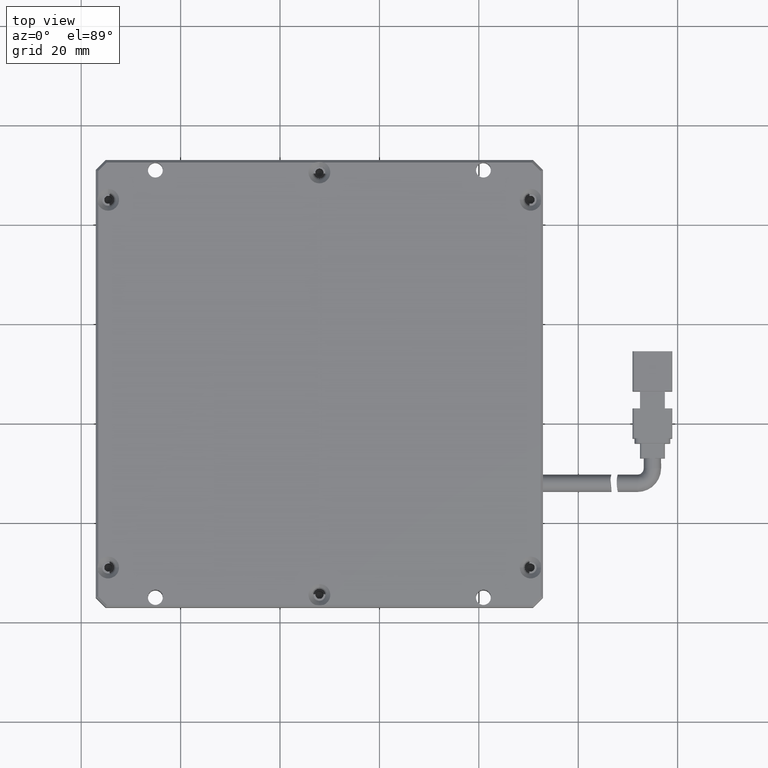
[diagram: clean part render]
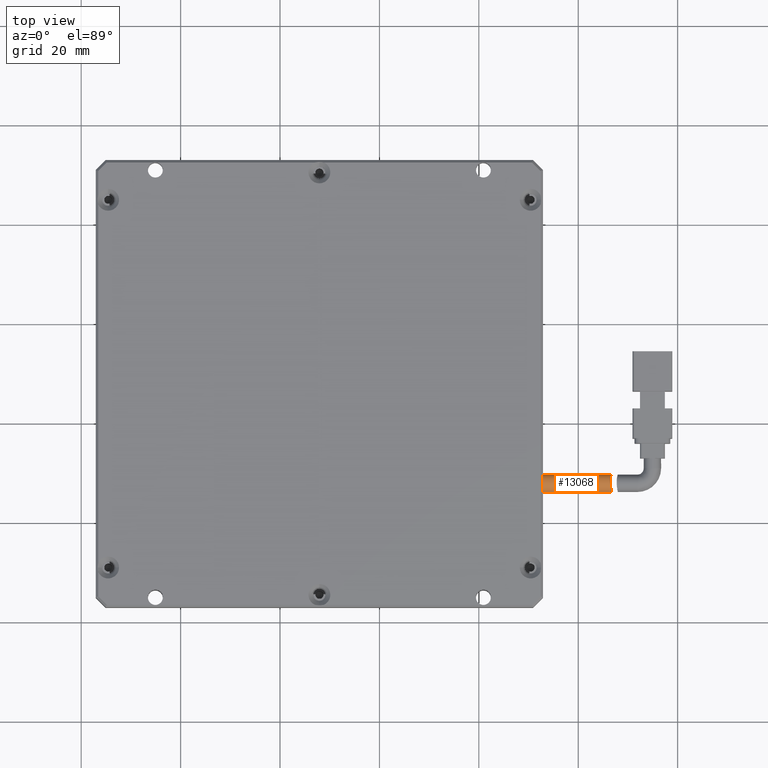
[diagram: same view with one face highlighted and labeled with its STEP entity id]
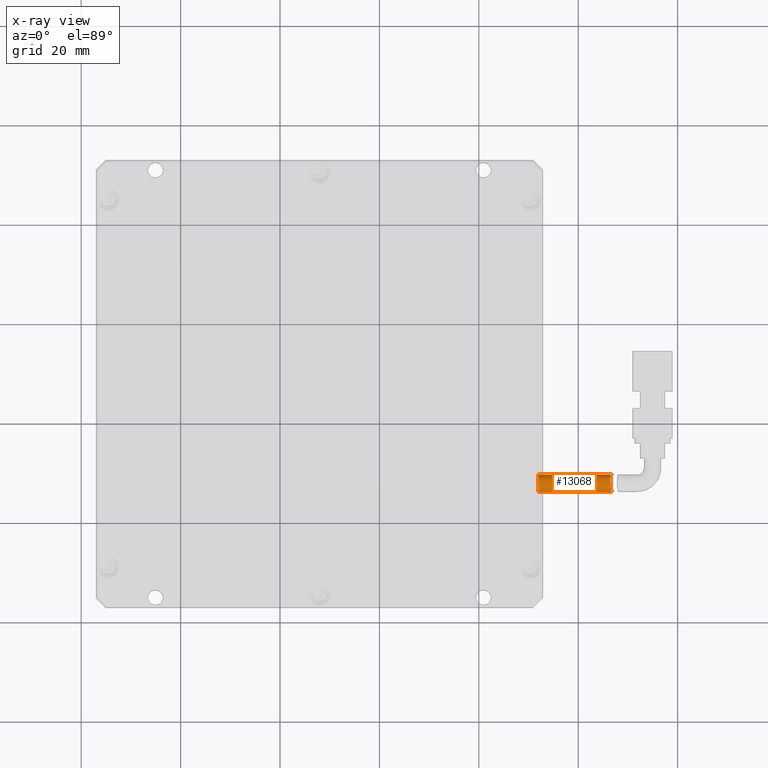
[diagram: x-ray of the same camera — body ghosted, the highlighted face saturated]
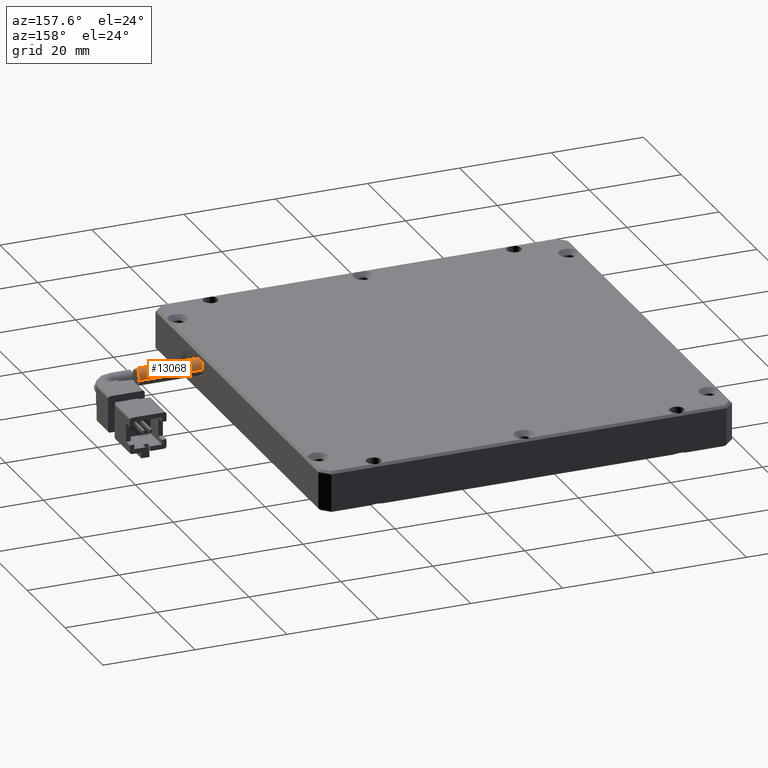
[diagram: same view with one face highlighted and labeled with its STEP entity id]
A machine part, top view. The second image highlights one B-rep face of the part: STEP entity #13068.
The next image is the same camera in x-ray: the body ghosted, the highlighted face saturated — about 0% of this face is hidden behind the body in this view.
A second angle (auxiliary view) of the same face is appended — the face is thin or edge-on in the first view.
In plain terms, the highlighted cylindrical surface (edge-blend (fillet) strip) has radius 1.75 mm, axis along (-1, 0, -0).
Its self-contained STEP definition (entity closure, byte-faithful):
#812 = CARTESIAN_POINT ( 'NONE',  ( 26.70158067323804800, 6.190000000000009300, 2.916052899521376100 ) ) ;
#861 = CARTESIAN_POINT ( 'NONE',  ( 26.46601575569392400, 8.168758137528374900, 4.538773471091059400 ) ) ;
#1023 = AXIS2_PLACEMENT_3D ( 'NONE', #12238, #10836, #9479 ) ;
#1254 = LINE ( 'NONE', #5426, #4537 ) ;
#2217 = CARTESIAN_POINT ( 'NONE',  ( 26.69032375946302000, 6.246159092512708200, 3.254400641859423800 ) ) ;
#2287 = CARTESIAN_POINT ( 'NONE',  ( 26.47211074846690000, 8.503248661909260900, 4.460870664720753000 ) ) ;
#2537 = FACE_OUTER_BOUND ( 'NONE', #6550, .T. ) ;
#3635 = CARTESIAN_POINT ( 'NONE',  ( 26.66653411692674100, 6.368124325212294300, 3.577736136175877000 ) ) ;
#3687 = CARTESIAN_POINT ( 'NONE',  ( 26.51657101331002400, 9.015126541372550800, 4.199748863431739900 ) ) ;
#4300 = B_SPLINE_CURVE_WITH_KNOTS ( 'NONE', 3,
 ( #9127, #812, #10546, #2217, #11931, #3635, #13318, #4989, #14736, #6384, #16154, #7777, #17562, #9190, #861, #10596, #2287, #11993, #3687, #13380, #5054, #14790, #6442, #16207, #7839, #17605 ),
 .UNSPECIFIED., .F., .F.,
 ( 4, 2, 2, 2, 2, 2, 2, 2, 2, 2, 2, 2, 4 ),
 ( 2.381693838285691900E-017, 0.0003431607499797119700, 0.0006863214999594002000, 0.001029482249939088300, 0.001372642999918776600, 0.002058964499878154000, 0.002745285999837531400, 0.003088446749817218200, 0.003431607499796904100, 0.004117928999756277600, 0.004461089749735964000, 0.004804250499715651200, 0.005490571999675029000 ),
 .UNSPECIFIED. ) ;
#4510 = CARTESIAN_POINT ( 'NONE',  ( 26.70158067323804800, 6.190000000000011900, 2.800000000000004300 ) ) ;
#4537 = VECTOR ( 'NONE', #18061, 1000.000000000000000 ) ;
#4570 = VERTEX_POINT ( 'NONE', #16129 ) ;
#4659 = AXIS2_PLACEMENT_3D ( 'NONE', #8469, #8407, #8342 ) ;
#4989 = CARTESIAN_POINT ( 'NONE',  ( 26.63303142591253100, 6.549122162416321800, 3.868188415526133900 ) ) ;
#5054 = CARTESIAN_POINT ( 'NONE',  ( 26.57346176047993700, 9.330652208758891700, 3.868417009494727200 ) ) ;
#5168 = EDGE_CURVE ( 'NONE', #15434, #4570, #6426, .T. ) ;
#5426 = CARTESIAN_POINT ( 'NONE',  ( 31.92074074074073700, 6.190000000000011000, 2.800000000000005600 ) ) ;
#6011 = VERTEX_POINT ( 'NONE', #4510 ) ;
#6384 = CARTESIAN_POINT ( 'NONE',  ( 26.57968474392990300, 6.864314319381489500, 4.198983333046947500 ) ) ;
#6426 = CIRCLE ( 'NONE', #4659, 1.749999999999998000 ) ;
#6442 = CARTESIAN_POINT ( 'NONE',  ( 26.61535722050973300, 9.512108211625504200, 3.577188015046552500 ) ) ;
#6550 = EDGE_LOOP ( 'NONE', ( #14514, #14740, #15036, #15148 ) ) ;
#7525 = DIRECTION ( 'NONE',  ( -1.000000000000000000, 9.566035693696577100E-017, -2.339027312099227300E-016 ) ) ;
#7777 = CARTESIAN_POINT ( 'NONE',  ( 26.50124763752331000, 7.478730039801931200, 4.503361838500309100 ) ) ;
#7839 = CARTESIAN_POINT ( 'NONE',  ( 26.66446017990106300, 9.690000000000010200, 3.032161965900029200 ) ) ;
#8342 = DIRECTION ( 'NONE',  ( 0.0000000000000000000, 1.000000000000000000, -4.956352788505169200E-016 ) ) ;
#8407 = DIRECTION ( 'NONE',  ( 1.000000000000000000, -9.566035693696577100E-017, 2.339027312099227300E-016 ) ) ;
#8469 = CARTESIAN_POINT ( 'NONE',  ( 11.92074074074077700, 7.940000000000012800, 2.799999999999999800 ) ) ;
#9099 = CARTESIAN_POINT ( 'NONE',  ( 11.92074074074077700, 9.690000000000011900, 2.799999999999998900 ) ) ;
#9127 = CARTESIAN_POINT ( 'NONE',  ( 26.70158067323804800, 6.190000000000011900, 2.800000000000004300 ) ) ;
#9186 = VERTEX_POINT ( 'NONE', #16831 ) ;
#9190 = CARTESIAN_POINT ( 'NONE',  ( 26.46788877478658700, 8.052292325041639400, 4.550139874401407000 ) ) ;
#9479 = DIRECTION ( 'NONE',  ( 0.0000000000000000000, 1.000000000000000000, -4.956352788505169200E-016 ) ) ;
#10546 = CARTESIAN_POINT ( 'NONE',  ( 26.69926237398847100, 6.201429552302443900, 3.030108151946738500 ) ) ;
#10596 = CARTESIAN_POINT ( 'NONE',  ( 26.46816962982062200, 8.393816519510590300, 4.494023032864311600 ) ) ;
#10788 = EDGE_CURVE ( 'NONE', #9186, #15434, #17677, .T. ) ;
#10836 = DIRECTION ( 'NONE',  ( -1.000000000000000000, 9.566035693696577100E-017, -2.339027312099227300E-016 ) ) ;
#11610 = CARTESIAN_POINT ( 'NONE',  ( 31.92074074074073700, 9.690000000000008400, 2.800000000000003800 ) ) ;
#11931 = CARTESIAN_POINT ( 'NONE',  ( 26.68359052863430100, 6.280028092483430400, 3.365826740936560800 ) ) ;
#11993 = CARTESIAN_POINT ( 'NONE',  ( 26.49217759930603200, 8.822183944472023100, 4.328794678302347900 ) ) ;
#12238 = CARTESIAN_POINT ( 'NONE',  ( 31.92074074074073700, 7.940000000000009300, 2.800000000000004700 ) ) ;
#13068 = ADVANCED_FACE ( 'NONE', ( #2537 ), #15601, .T. ) ;
#13318 = CARTESIAN_POINT ( 'NONE',  ( 26.65627912394476300, 6.421981585483121300, 3.678172957527925400 ) ) ;
#13380 = CARTESIAN_POINT ( 'NONE',  ( 26.55881905039465700, 9.258601582320130400, 3.956271316457955900 ) ) ;
#13944 = VECTOR ( 'NONE', #7525, 1000.000000000000000 ) ;
#14514 = ORIENTED_EDGE ( 'NONE', *, *, #17679, .F. ) ;
#14736 = CARTESIAN_POINT ( 'NONE',  ( 26.61997039424606000, 6.622866141881243800, 3.957841488376062900 ) ) ;
#14740 = ORIENTED_EDGE ( 'NONE', *, *, #14864, .T. ) ;
#14790 = CARTESIAN_POINT ( 'NONE',  ( 26.60167214282906700, 9.457213887626814100, 3.679483081756534300 ) ) ;
#14864 = EDGE_CURVE ( 'NONE', #6011, #9186, #4300, .T. ) ;
#15036 = ORIENTED_EDGE ( 'NONE', *, *, #10788, .T. ) ;
#15148 = ORIENTED_EDGE ( 'NONE', *, *, #5168, .T. ) ;
#15434 = VERTEX_POINT ( 'NONE', #9099 ) ;
#15601 = CYLINDRICAL_SURFACE ( 'NONE', #1023, 1.749999999999998000 ) ;
#16129 = CARTESIAN_POINT ( 'NONE',  ( 11.92074074074077700, 6.190000000000014600, 2.800000000000002500 ) ) ;
#16154 = CARTESIAN_POINT ( 'NONE',  ( 26.55028319403821900, 7.058716882011347900, 4.328905358414467700 ) ) ;
#16207 = CARTESIAN_POINT ( 'NONE',  ( 26.64993217213556400, 9.643631035625723800, 3.260785257606989300 ) ) ;
#16831 = CARTESIAN_POINT ( 'NONE',  ( 26.66446017990106300, 9.690000000000008400, 2.800000000000002500 ) ) ;
#17562 = CARTESIAN_POINT ( 'NONE',  ( 26.48136051188328500, 7.708938081384711300, 4.549716255481322400 ) ) ;
#17605 = CARTESIAN_POINT ( 'NONE',  ( 26.66446017990106300, 9.690000000000008400, 2.800000000000002500 ) ) ;
#17677 = LINE ( 'NONE', #11610, #13944 ) ;
#17679 = EDGE_CURVE ( 'NONE', #6011, #4570, #1254, .T. ) ;
#18061 = DIRECTION ( 'NONE',  ( -1.000000000000000000, 9.566035693696577100E-017, -2.339027312099227300E-016 ) ) ;